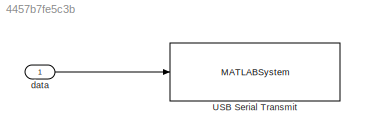
MODEL slx_4457b7fe5c3b
KIND model
CONFIG AbsTol = auto
CONFIG FixedStep = auto
CONFIG MaxStep = auto
CONFIG MinStep = auto
CONFIG RelTol = 1e-3
CONFIG SampleTimeConstraint = Unconstrained
CONFIG Solver = FixedStepAuto
CONFIG SolverMode = Auto
CONFIG SolverName = FixedStepAuto
CONFIG StartTime = 0.0
CONFIG StopTime = 10.0
BLOCK [MATLABSystem] USB Serial Transmit
  MaskDisplay = disp('frdmUSBserialTxClass');\nport_label('input',1,'data');
  MaskType = frdmUSBserialTxClass
  Ports = [1]
  SimulateUsing = Code generation
  System = frdmUSBserialTxClass
BLOCK [Inport] data
  IconDisplay = Port number
  OutDataTypeStr = uint8
  SignalType = real
LINE data:1 -> USB Serial Transmit:1
